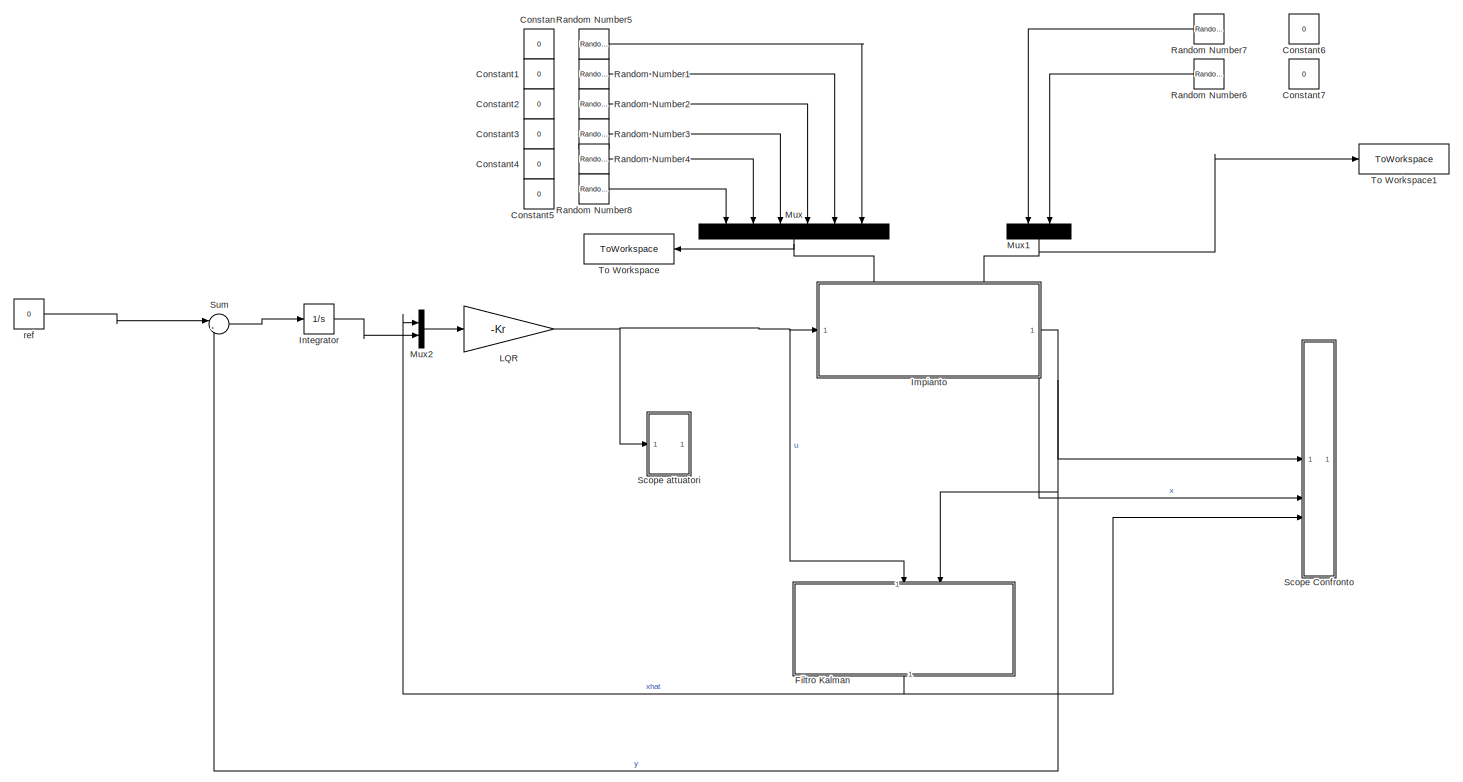
[diagram: root canvas - part 1/1, most of the canvas]
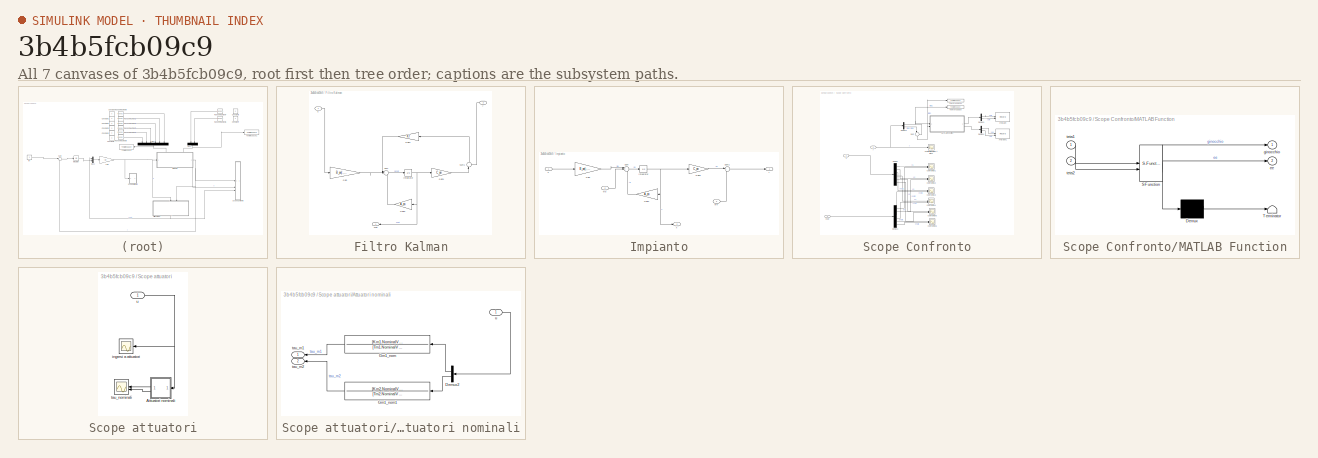
[diagram: thumbnail index - all 7 canvases of the model, root first then tree order]
MODEL slx_3b4b5fcb09c9
KIND model
CONFIG AbsTol = auto
CONFIG EnableMultiTasking = off
CONFIG FixedStep = auto
CONFIG MaxStep = auto
CONFIG MinStep = auto
CONFIG RelTol = 1e-3
CONFIG SampleTimeConstraint = Unconstrained
CONFIG SolverName = VariableStepAuto
CONFIG StartTime = 0.0
CONFIG StopTime = 10
BLOCK [Constant] Constant
  Value = 0
BLOCK [Constant] Constant1
  Value = 0
BLOCK [Constant] Constant2
  Value = 0
BLOCK [Constant] Constant3
  Value = 0
BLOCK [Constant] Constant4
  Value = 0
BLOCK [Constant] Constant5
  Value = 0
BLOCK [Constant] Constant6
  Value = 0
BLOCK [Constant] Constant7
  Value = 0
BLOCK [SubSystem] Filtro Kalman
  NameLocation = left
BLOCK [Gain] Filtro Kalman/Gain
  Gain = B_an(:,3:4)
  Multiplication = Matrix(K*u) (u vector)
BLOCK [Gain] Filtro Kalman/Gain1
  Gain = C_an
  Multiplication = Matrix(K*u) (u vector)
BLOCK [Gain] Filtro Kalman/Gain2
  Gain = Kf
  Multiplication = Matrix(K*u) (u vector)
BLOCK [Gain] Filtro Kalman/Gain3
  Gain = A_an
  Multiplication = Matrix(K*u) (u vector)
BLOCK [Integrator] Filtro Kalman/Integrator
  InitialCondition = cond_iniz
BLOCK [Sum] Filtro Kalman/Sum
  Inputs = |+++
BLOCK [Sum] Filtro Kalman/Sum1
  Inputs = |-+
  NameLocation = right
BLOCK [Inport] Filtro Kalman/u
BLOCK [Outport] Filtro Kalman/xhat
BLOCK [Inport] Filtro Kalman/y
  Port = 2
BLOCK [SubSystem] Impianto
  PortSchema = {"entries":[{"content":{"sides":[{"content":{"connectorIds":["In1"]},"type":"ConnectorPlacement.EquallySpacedRectSide","uuid":"1f338e48-7831-4bd3-85b4-3ffb6ec30be0"},{"content":{"connectorIds":["Out1"],"side":"RIGHT"},"type":"ConnectorPlacement.EquallySpacedRectSide","uuid":"72b62bfc-b5ba-4fca-990c-fb8ade2baa52"},{"content":{"connectorIds":["In2","In3"],"side":"TOP"},"type":"ConnectorPlacement.Equ...<+401ch>
BLOCK [Gain] Impianto/Gain
  Gain = B_an(:,3:4)
  Multiplication = Matrix(K*u) (u vector)
BLOCK [Gain] Impianto/Gain1
  Gain = A_an
  Multiplication = Matrix(K*u) (u vector)
BLOCK [Gain] Impianto/Gain2
  Gain = C_an
  Multiplication = Matrix(K*u) (u vector)
BLOCK [Integrator] Impianto/Integrator
  InitialCondition = cond_iniz
BLOCK [Sum] Impianto/Sum
  Inputs = |+++
BLOCK [Sum] Impianto/Sum1
  Inputs = |++
BLOCK [Inport] Impianto/u
BLOCK [Inport] Impianto/wd
  Port = 2
BLOCK [Inport] Impianto/wn
  Port = 3
BLOCK [Outport] Impianto/x
  Port = 2
BLOCK [Outport] Impianto/y
BLOCK [Integrator] Integrator
BLOCK [Gain] LQR
  Gain = -Kr
  Multiplication = Matrix(K*u) (u vector)
BLOCK [Mux] Mux
  DisplayOption = signals
  Inputs = 6
  NameLocation = left
BLOCK [Mux] Mux1
  DisplayOption = signals
  Inputs = 2
  NameLocation = right
BLOCK [Mux] Mux2
  DisplayOption = bar
  Inputs = 2
BLOCK [RandomNumber] Random Number1
  SampleTime = 0.01
  Variance = stdv_wd^2
BLOCK [RandomNumber] Random Number2
  SampleTime = 0.01
  Variance = stdv_wd^2
BLOCK [RandomNumber] Random Number3
  SampleTime = 0.01
  Variance = stdv_wd^2
BLOCK [RandomNumber] Random Number4
  SampleTime = 0.01
  Variance = stdv_wd^2
BLOCK [RandomNumber] Random Number5
  SampleTime = 0.01
  Variance = stdv_wd^2
BLOCK [RandomNumber] Random Number6
  SampleTime = 0.01
  Variance = stdv_wn^2
BLOCK [RandomNumber] Random Number7
  SampleTime = 0.01
  Variance = stdv_wn^2
BLOCK [RandomNumber] Random Number8
  SampleTime = 0.01
  Variance = stdv_wd^2
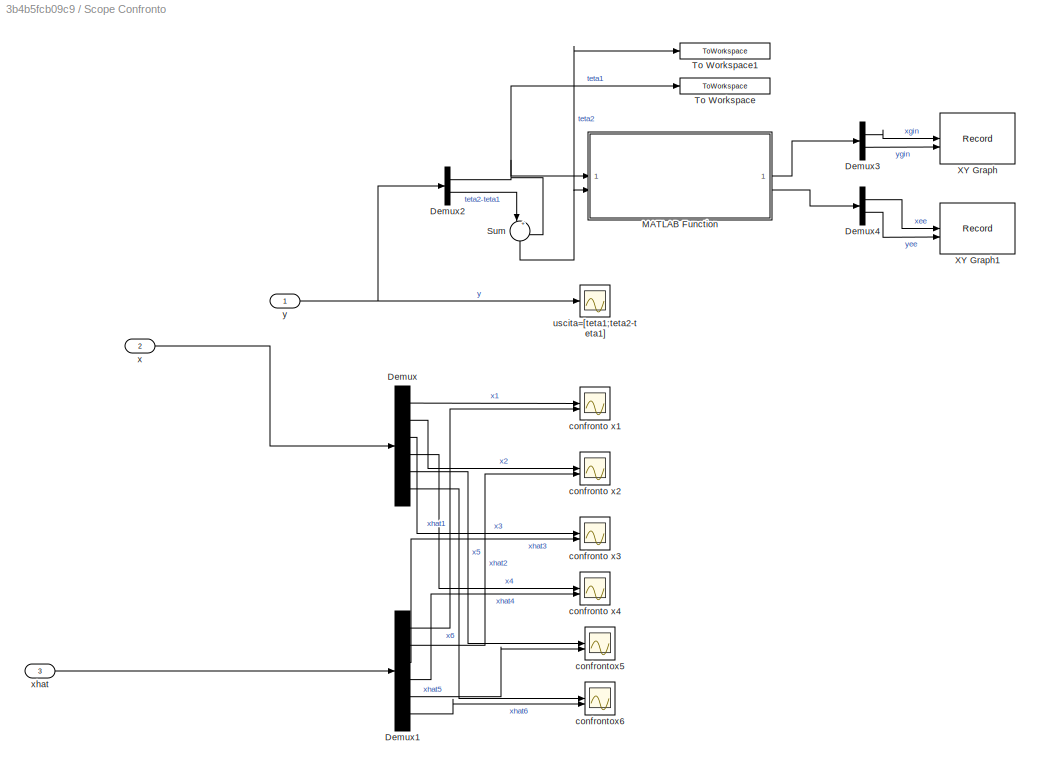
BLOCK [SubSystem] Scope Confronto
BLOCK [Demux] Scope Confronto/Demux
  Outputs = 6
BLOCK [Demux] Scope Confronto/Demux1
  Outputs = 6
BLOCK [Demux] Scope Confronto/Demux2
  Outputs = 2
BLOCK [Demux] Scope Confronto/Demux3
  Outputs = 2
BLOCK [Demux] Scope Confronto/Demux4
  Outputs = 2
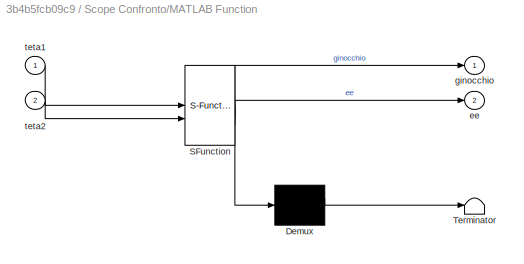
BLOCK [SubSystem] Scope Confronto/MATLAB Function
  ErrorFcn = Stateflow.Translate.translate
  LibrarySourceBlock = simulink/User-Defined\nFunctions/MATLAB Function
  PermitHierarchicalResolution = ExplicitOnly
  SFBlockType = MATLAB Function
  TreatAsAtomicUnit = on
BLOCK [Demux] Scope Confronto/MATLAB Function/ Demux 
  Outputs = 1
BLOCK [S-Function] Scope Confronto/MATLAB Function/ SFunction 
  EnableBusSupport = on
  FunctionName = sf_sfun
  PortCounts = [2 3]
  SFcnIsStateOwnerBlock = off
  SFunctionDeploymentMode = off
  Tag = Stateflow S-Function 1
BLOCK [Terminator] Scope Confronto/MATLAB Function/ Terminator 
BLOCK [Outport] Scope Confronto/MATLAB Function/ee
  Port = 2
BLOCK [Outport] Scope Confronto/MATLAB Function/ginocchio
BLOCK [Inport] Scope Confronto/MATLAB Function/teta1
BLOCK [Inport] Scope Confronto/MATLAB Function/teta2
  Port = 2
BLOCK [Sum] Scope Confronto/Sum
  Inputs = |++
  NameLocation = right
BLOCK [ToWorkspace] Scope Confronto/To Workspace
  FixptAsFi = on
  MaxDataPoints = inf
  SampleTime = 0.001
  SaveFormat = Timeseries
  VariableName = teta1
BLOCK [ToWorkspace] Scope Confronto/To Workspace1
  FixptAsFi = on
  MaxDataPoints = inf
  SampleTime = 0.001
  SaveFormat = Timeseries
  VariableName = teta2
BLOCK [Record] Scope Confronto/XY Graph
  CompatibilityTag = XY
  FileSettingsInternal = {"entries":[{"content":{"excelSettings":{"content":{},"type":"Streamout.ExcelSettings"}},"type":"Streamout.FileSettingStorage","uuid":"1aec5a66-9faf-4be9-be32-4a1f2fbd7d38"}],"packageUris":["http://schema.mathworks.com/mf0/streamout_blocks/R2020a"],"version":"1.0"}
  Layout = [1 1]
  SignalsInternal = {"entries":[{"content":{"signals":[{"content":{"blockPath":["LQG_integ/Scope Confronto/XY Graph"],"channel":[],"dimensions":[1,1],"domain":"LQG_integ/Scope Confronto/XY Graph","lineColor":"#edb120","plots":[1],"port":1,"sid":[""],"signalID":193,"signalName":"xgin"},"type":"RecordBlkView.Signal","uuid":"a2577076-73b7-460a-9782-d7da85179f06"},{"content":{"blockPath":["LQG_integ/Scope Confronto/XY Gr...<+427ch>
  VisualizationBindings = {"sparklinesplugin":{"info":[{"bindingParametersList":[],"subplotID":1}]}}
BLOCK [Record] Scope Confronto/XY Graph1
  CompatibilityTag = XY
  FileSettingsInternal = {"entries":[{"content":{"excelSettings":{"content":{},"type":"Streamout.ExcelSettings"}},"type":"Streamout.FileSettingStorage","uuid":"84f9beb5-d780-45bb-acc4-f1f123f98af6"}],"packageUris":["http://schema.mathworks.com/mf0/streamout_blocks/R2020a"],"version":"1.0"}
  Layout = [1 1]
  SignalsInternal = {"entries":[{"content":{"signals":[{"content":{"blockPath":["LQG_integ/Scope Confronto/XY Graph1"],"channel":[],"dimensions":[1,1],"domain":"LQG_integ/Scope Confronto/XY Graph1","lineColor":"#77ac30","plots":[1],"port":1,"sid":[""],"signalID":201,"signalName":"xee"},"type":"RecordBlkView.Signal","uuid":"8fcdab56-b7a0-4d76-8ca8-cab75be907a8"},{"content":{"blockPath":["LQG_integ/Scope Confronto/XY G...<+429ch>
  VisualizationBindings = {"sparklinesplugin":{"info":[{"bindingParametersList":[],"subplotID":1}]}}
BLOCK [Scope] Scope Confronto/confronto x1
  Floating = off
  NumInputPorts = 2
  ScopeSpecificationString = Simulink.scopes.TimeScopeBlockCfg('CurrentConfiguration', extmgr.ConfigurationSet(extmgr.Configuration('Core','General UI',true),extmgr.Configuration('Core','Source UI',true),extmgr.Configuration('Sources','WiredSimulink',true,'DataLoggingVariableName','ScopeData1'),extmgr.Configuration('Visuals','Time Domain',true,'SerializedDisplays',{struct('MinYLimReal','-0.27269','MaxYLimReal','0.90124','YLab...<+1449ch>
BLOCK [Scope] Scope Confronto/confronto x2
  Floating = off
  NumInputPorts = 2
  ScopeSpecificationString = Simulink.scopes.TimeScopeBlockCfg('CurrentConfiguration', extmgr.ConfigurationSet(extmgr.Configuration('Core','General UI',true),extmgr.Configuration('Core','Source UI',true),extmgr.Configuration('Sources','WiredSimulink',true,'DataLoggingVariableName','ScopeData2'),extmgr.Configuration('Visuals','Time Domain',true,'SerializedDisplays',{struct('MinYLimReal','-4017723510744.68115','MaxYLimReal','36...<+1543ch>
BLOCK [Scope] Scope Confronto/confronto x3
  Floating = off
  NumInputPorts = 2
  ScopeSpecificationString = Simulink.scopes.TimeScopeBlockCfg('CurrentConfiguration', extmgr.ConfigurationSet(extmgr.Configuration('Core','General UI',true),extmgr.Configuration('Core','Source UI',true),extmgr.Configuration('Sources','WiredSimulink',true,'DataLoggingVariableName','ScopeData3'),extmgr.Configuration('Visuals','Time Domain',true,'SerializedDisplays',{struct('MinYLimReal','-21766849785285.76953','MaxYLimReal','1...<+1506ch>
BLOCK [Scope] Scope Confronto/confronto x4
  Floating = off
  NumInputPorts = 2
  ScopeSpecificationString = Simulink.scopes.TimeScopeBlockCfg('CurrentConfiguration', extmgr.ConfigurationSet(extmgr.Configuration('Core','General UI',true),extmgr.Configuration('Core','Source UI',true),extmgr.Configuration('Sources','WiredSimulink',true,'DataLoggingVariableName','ScopeData4'),extmgr.Configuration('Visuals','Time Domain',true,'SerializedDisplays',{struct('MinYLimReal','10955260138291.93359','MaxYLimReal','10...<+1519ch>
BLOCK [Scope] Scope Confronto/confrontox5
  Floating = off
  NumInputPorts = 2
  ScopeSpecificationString = Simulink.scopes.TimeScopeBlockCfg('CurrentConfiguration', extmgr.ConfigurationSet(extmgr.Configuration('Core','General UI',true),extmgr.Configuration('Core','Source UI',true),extmgr.Configuration('Sources','WiredSimulink',true,'DataLoggingVariableName','ScopeData5'),extmgr.Configuration('Visuals','Time Domain',true,'SerializedDisplays',{struct('MinYLimReal','-0.761404047931','MaxYLimReal','-0.7614...<+1509ch>
BLOCK [Scope] Scope Confronto/confrontox6
  Floating = off
  NumInputPorts = 2
  ScopeSpecificationString = Simulink.scopes.TimeScopeBlockCfg('CurrentConfiguration', extmgr.ConfigurationSet(extmgr.Configuration('Core','General UI',true),extmgr.Configuration('Core','Source UI',true),extmgr.Configuration('Sources','WiredSimulink',true,'DataLoggingVariableName','ScopeData6'),extmgr.Configuration('Visuals','Time Domain',true,'SerializedDisplays',{struct('MinYLimReal','-0.02857175610945','MaxYLimReal','-0.02...<+1496ch>
BLOCK [Scope] Scope Confronto/uscita=[teta1;teta2-teta1]
  Floating = off
  NumInputPorts = 1
  ScopeSpecificationString = Simulink.scopes.TimeScopeBlockCfg('CurrentConfiguration', extmgr.ConfigurationSet(extmgr.Configuration('Core','General UI',true),extmgr.Configuration('Core','Source UI',true),extmgr.Configuration('Sources','WiredSimulink',true),extmgr.Configuration('Visuals','Time Domain',true,'SerializedDisplays',{struct('MinYLimReal','-9.05466','MaxYLimReal','6.33969','YLabelReal','','MinYLimMag','0.00000','MaxY...<+1363ch>
BLOCK [Inport] Scope Confronto/x
  Port = 2
BLOCK [Inport] Scope Confronto/xhat
  Port = 3
BLOCK [Inport] Scope Confronto/y
BLOCK [SubSystem] Scope attuatori
BLOCK [SubSystem] Scope attuatori/Attuatori nominali
BLOCK [Demux] Scope attuatori/Attuatori nominali/Demux2
  Outputs = 2
BLOCK [TransferFcn] Scope attuatori/Attuatori nominali/Gm1_nom
  Denominator = [Tm1.NominalValue 1]
  Numerator = [Km1.NominalValue]
BLOCK [TransferFcn] Scope attuatori/Attuatori nominali/Gm1_nom1
  Denominator = [Tm2.NominalValue 1]
  Numerator = [Km2.NominalValue]
BLOCK [Outport] Scope attuatori/Attuatori nominali/tau_m1
BLOCK [Outport] Scope attuatori/Attuatori nominali/tau_m2
  Port = 2
BLOCK [Inport] Scope attuatori/Attuatori nominali/u
BLOCK [Scope] Scope attuatori/ingresi a attuatori
  Floating = off
  NumInputPorts = 1
  ScopeSpecificationString = Simulink.scopes.TimeScopeBlockCfg('CurrentConfiguration', extmgr.ConfigurationSet(extmgr.Configuration('Core','General UI',true),extmgr.Configuration('Core','Source UI',true),extmgr.Configuration('Sources','WiredSimulink',true,'DataLoggingVariableName','ScopeData7'),extmgr.Configuration('Visuals','Time Domain',true,'SerializedDisplays',{struct('MinYLimReal','-475533900948966.4375','MaxYLimReal','8...<+1502ch>
BLOCK [Scope] Scope attuatori/tau_nominali
  Floating = off
  NumInputPorts = 2
  ScopeSpecificationString = Simulink.scopes.TimeScopeBlockCfg('CurrentConfiguration', extmgr.ConfigurationSet(extmgr.Configuration('Core','General UI',true),extmgr.Configuration('Core','Source UI',true),extmgr.Configuration('Sources','WiredSimulink',true,'DataLoggingVariableName','ScopeData8'),extmgr.Configuration('Visuals','Time Domain',true,'SerializedDisplays',{struct('MinYLimReal','-56.80851','MaxYLimReal','15.39479','YL...<+1447ch>
BLOCK [Inport] Scope attuatori/u
BLOCK [Sum] Sum
  Inputs = |+-
BLOCK [ToWorkspace] To Workspace
  FixptAsFi = on
  MaxDataPoints = inf
  SampleTime = -1
  VariableName = wd
BLOCK [ToWorkspace] To Workspace1
  FixptAsFi = on
  MaxDataPoints = inf
  SampleTime = -1
  VariableName = wn
BLOCK [Constant] ref
  Value = 0
LINE Filtro Kalman/Gain1:1 -> Filtro Kalman/Sum1:1
LINE Filtro Kalman/Gain2:1 -> Filtro Kalman/Sum:1
LINE Filtro Kalman/Gain3:1 -> Filtro Kalman/Sum:3
LINE Filtro Kalman/Gain:1 -> Filtro Kalman/Sum:2
NET Filtro Kalman/Integrator:1 -> Filtro Kalman/Gain1:1, Filtro Kalman/Gain3:1, Filtro Kalman/xhat:1
LINE Filtro Kalman/Sum1:1 -> Filtro Kalman/Gain2:1
LINE Filtro Kalman/Sum:1 -> Filtro Kalman/Integrator:1
LINE Filtro Kalman/u:1 -> Filtro Kalman/Gain:1
LINE Filtro Kalman/y:1 -> Filtro Kalman/Sum1:2
NET Filtro Kalman:1 -> Mux2:1, Scope Confronto:3
LINE Impianto/Gain1:1 -> Impianto/Sum:3
LINE Impianto/Gain2:1 -> Impianto/Sum1:1
LINE Impianto/Gain:1 -> Impianto/Sum:1
NET Impianto/Integrator:1 -> Impianto/Gain1:1, Impianto/Gain2:1, Impianto/x:1
LINE Impianto/Sum1:1 -> Impianto/y:1
LINE Impianto/Sum:1 -> Impianto/Integrator:1
LINE Impianto/u:1 -> Impianto/Gain:1
LINE Impianto/wd:1 -> Impianto/Sum:2
LINE Impianto/wn:1 -> Impianto/Sum1:2
NET Impianto:1 -> Filtro Kalman:2, Scope Confronto:1, Sum:2
LINE Impianto:2 -> Scope Confronto:2
LINE Integrator:1 -> Mux2:2
NET LQR:1 -> Filtro Kalman:1, Impianto:1, Scope attuatori:1
NET Mux1:1 -> Impianto:3, To Workspace1:1
LINE Mux2:1 -> LQR:1
NET Mux:1 -> Impianto:2, To Workspace:1
LINE Random Number1:1 -> Mux:5
LINE Random Number2:1 -> Mux:4
LINE Random Number3:1 -> Mux:3
LINE Random Number4:1 -> Mux:2
LINE Random Number5:1 -> Mux:6
LINE Random Number6:1 -> Mux1:2
LINE Random Number7:1 -> Mux1:1
LINE Random Number8:1 -> Mux:1
LINE Scope Confronto/Demux1:1 -> Scope Confronto/confronto x1:2
LINE Scope Confronto/Demux1:2 -> Scope Confronto/confronto x2:2
LINE Scope Confronto/Demux1:3 -> Scope Confronto/confronto x3:2
LINE Scope Confronto/Demux1:4 -> Scope Confronto/confronto x4:2
LINE Scope Confronto/Demux1:5 -> Scope Confronto/confrontox5:2
LINE Scope Confronto/Demux1:6 -> Scope Confronto/confrontox6:2
NET Scope Confronto/Demux2:1 -> Scope Confronto/MATLAB Function:1, Scope Confronto/Sum:2, Scope Confronto/To Workspace:1
LINE Scope Confronto/Demux2:2 -> Scope Confronto/Sum:1
LINE Scope Confronto/Demux3:1 -> Scope Confronto/XY Graph:1
LINE Scope Confronto/Demux3:2 -> Scope Confronto/XY Graph:2
LINE Scope Confronto/Demux4:1 -> Scope Confronto/XY Graph1:1
LINE Scope Confronto/Demux4:2 -> Scope Confronto/XY Graph1:2
LINE Scope Confronto/Demux:1 -> Scope Confronto/confronto x1:1
LINE Scope Confronto/Demux:2 -> Scope Confronto/confronto x2:1
LINE Scope Confronto/Demux:3 -> Scope Confronto/confronto x3:1
LINE Scope Confronto/Demux:4 -> Scope Confronto/confronto x4:1
LINE Scope Confronto/Demux:5 -> Scope Confronto/confrontox5:1
LINE Scope Confronto/Demux:6 -> Scope Confronto/confrontox6:1
LINE Scope Confronto/MATLAB Function:1 -> Scope Confronto/Demux3:1
LINE Scope Confronto/MATLAB Function:2 -> Scope Confronto/Demux4:1
NET Scope Confronto/Sum:1 -> Scope Confronto/MATLAB Function:2, Scope Confronto/To Workspace1:1
LINE Scope Confronto/x:1 -> Scope Confronto/Demux:1
LINE Scope Confronto/xhat:1 -> Scope Confronto/Demux1:1
NET Scope Confronto/y:1 -> Scope Confronto/Demux2:1, Scope Confronto/uscita=[teta1;teta2-teta1]:1
LINE Scope attuatori/Attuatori nominali/Demux2:1 -> Scope attuatori/Attuatori nominali/Gm1_nom:1
LINE Scope attuatori/Attuatori nominali/Demux2:2 -> Scope attuatori/Attuatori nominali/Gm1_nom1:1
LINE Scope attuatori/Attuatori nominali/Gm1_nom1:1 -> Scope attuatori/Attuatori nominali/tau_m2:1
LINE Scope attuatori/Attuatori nominali/Gm1_nom:1 -> Scope attuatori/Attuatori nominali/tau_m1:1
LINE Scope attuatori/Attuatori nominali/u:1 -> Scope attuatori/Attuatori nominali/Demux2:1
LINE Scope attuatori/Attuatori nominali:1 -> Scope attuatori/tau_nominali:1
LINE Scope attuatori/Attuatori nominali:2 -> Scope attuatori/tau_nominali:2
NET Scope attuatori/u:1 -> Scope attuatori/Attuatori nominali:1, Scope attuatori/ingresi a attuatori:1
LINE Sum:1 -> Integrator:1
LINE ref:1 -> Sum:1
note: NET lines group one-source signal fan-out (src -> all destinations, sorted); 1:1 wires keep LINE
CHART Scope Confronto/MATLAB Function states=1 transitions=1
  STATE_LABEL 'eML_blk_kernel()'
  STATE_LABEL 'SCRIPT:\nfunction [ginocchio,ee] = fcn(teta1,teta2)\nl1=0.5;l2=0.4;\nginocchio=[l1*sin(teta1);\n           l1*cos(teta1)];\nee=ginocchio+[l2*sin(teta2);\n           l2*cos(teta2)];\nend\n'
CHART  states=0 transitions=0
